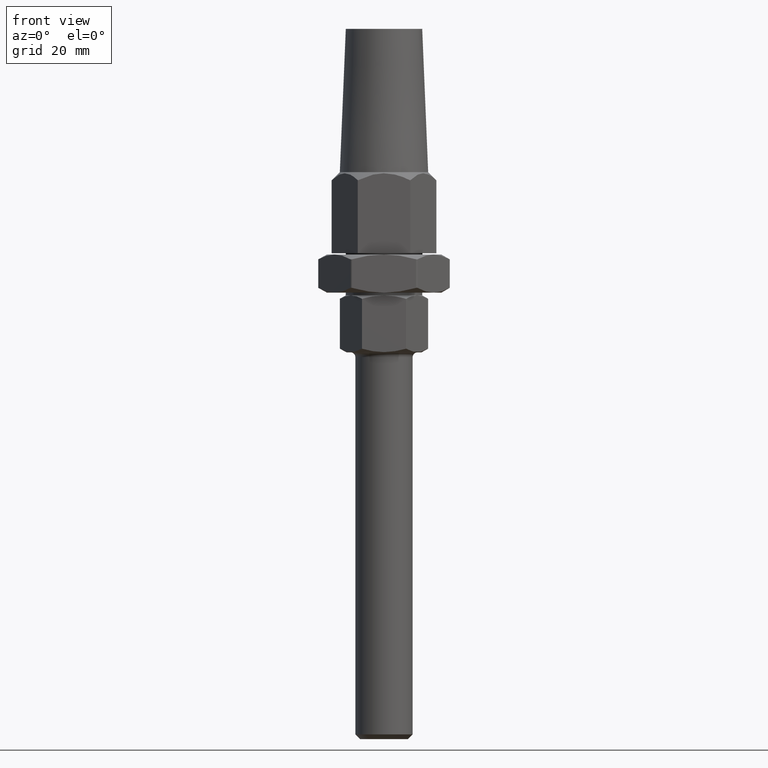
[diagram: clean part render]
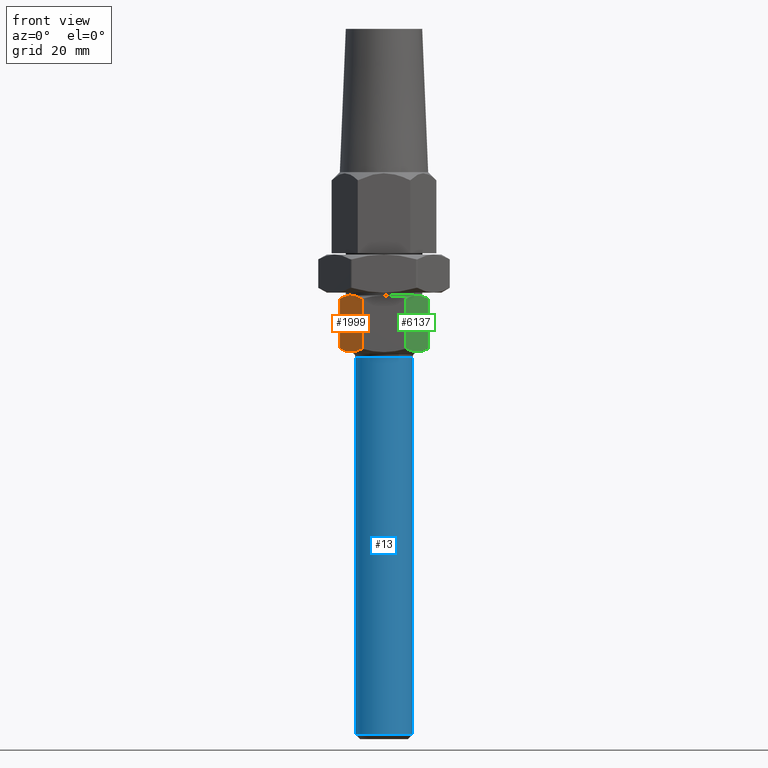
[diagram: same view with three faces highlighted in distinct colors, each labeled with its STEP entity id]
A machine part, front view with three faces highlighted in distinct colors.
Their STEP definitions:

[orange] entity #1999 — the highlighted planar face has unit normal (0.866, 0.5, 0).
#20 = VERTEX_POINT ( 'NONE', #8098 ) ;
#619 = CARTESIAN_POINT ( 'NONE',  ( -9.237604307034009900, 1.788119146427176900E-015, -5.227733793264724800 ) ) ;
#776 = CARTESIAN_POINT ( 'NONE',  ( -6.736274832021603500, -4.332429737191075600, -5.942512272802138000 ) ) ;
#809 = CARTESIAN_POINT ( 'NONE',  ( -6.928203230275510500, -3.999999999999999100, 5.942264973081040400 ) ) ;
#914 = CARTESIAN_POINT ( 'NONE',  ( -8.480771745766396900, -1.310872448937992200, 5.624914128192394000 ) ) ;
#1556 = DIRECTION ( 'NONE',  ( -0.0000000000000000000, -0.0000000000000000000, -1.000000000000000000 ) ) ;
#1973 = CARTESIAN_POINT ( 'NONE',  ( -6.928203230275510500, -3.999999999999999100, 5.942264973081040400 ) ) ;
#1999 = ADVANCED_FACE ( 'NONE', ( #8602 ), #13765, .F. ) ;
#2320 = B_SPLINE_CURVE_WITH_KNOTS ( 'NONE', 3,
 ( #1973, #17837, #5136, #13644, #2356, #914, #5008, #11000 ),
 .UNSPECIFIED., .F., .F.,
 ( 4, 2, 2, 4 ),
 ( 0.004673709593152159200, 0.005837709341827647700, 0.007001709090503136300, 0.009329708587854109900 ),
 .UNSPECIFIED. ) ;
#2355 = DIRECTION ( 'NONE',  ( -0.4999999999999998300, 0.8660254037844387100, 0.0000000000000000000 ) ) ;
#2356 = CARTESIAN_POINT ( 'NONE',  ( -7.903938623646862300, -2.309976723937604800, 5.811611927877235600 ) ) ;
#3192 = LINE ( 'NONE', #8799, #13558 ) ;
#3215 = VERTEX_POINT ( 'NONE', #619 ) ;
#3460 = ORIENTED_EDGE ( 'NONE', *, *, #14137, .F. ) ;
#3530 = CARTESIAN_POINT ( 'NONE',  ( -6.148799107120400000, -5.349967540933316300, -5.860684171246570700 ) ) ;
#3738 = CARTESIAN_POINT ( 'NONE',  ( -4.618802153517005000, -8.000000000000000000, 6.000000000000000000 ) ) ;
#4180 = VECTOR ( 'NONE', #1556, 1000.000000000000000 ) ;
#4546 = DIRECTION ( 'NONE',  ( -0.0000000000000000000, -0.0000000000000000000, -1.000000000000000000 ) ) ;
#4850 = AXIS2_PLACEMENT_3D ( 'NONE', #16667, #15432, #2355 ) ;
#4995 = CARTESIAN_POINT ( 'NONE',  ( -5.377060699637941500, -6.686657672845228700, -5.625588071664168400 ) ) ;
#5008 = CARTESIAN_POINT ( 'NONE',  ( -8.860760056385737800, -0.6527133886630256400, 5.445304922819297600 ) ) ;
#5136 = CARTESIAN_POINT ( 'NONE',  ( -7.321065037175421800, -3.319543390096029200, 5.925376115653274500 ) ) ;
#6547 = CARTESIAN_POINT ( 'NONE',  ( -7.325298332810816300, -3.312211106972067700, -5.941761941789737400 ) ) ;
#7107 = CARTESIAN_POINT ( 'NONE',  ( -4.618802153517005000, -8.000000000000000000, 5.227733793264723900 ) ) ;
#7230 = CARTESIAN_POINT ( 'NONE',  ( -4.996589667937373100, -7.345652830558758100, 5.445849516412256000 ) ) ;
#7483 = CARTESIAN_POINT ( 'NONE',  ( -4.618802153517005000, -8.000000000000000000, 5.227733793264723900 ) ) ;
#8098 = CARTESIAN_POINT ( 'NONE',  ( -9.237604307034009900, 1.788119146427176900E-015, 5.227733793264724800 ) ) ;
#8100 = CARTESIAN_POINT ( 'NONE',  ( -4.996353494169622600, -7.346061895523919600, -5.445713161423647400 ) ) ;
#8152 = CARTESIAN_POINT ( 'NONE',  ( -4.618802153517005000, -8.000000000000000000, -5.227733793264723900 ) ) ;
#8602 = FACE_OUTER_BOUND ( 'NONE', #13513, .T. ) ;
#8716 = CARTESIAN_POINT ( 'NONE',  ( -6.146186931204407100, -5.354491962338118900, 5.874166253475616300 ) ) ;
#8799 = CARTESIAN_POINT ( 'NONE',  ( -9.237604307034009900, 1.726546586878315100E-015, 6.000000000000000000 ) ) ;
#9081 = CARTESIAN_POINT ( 'NONE',  ( -4.618802153517005000, -8.000000000000000000, -5.227733793264723900 ) ) ;
#9145 = LINE ( 'NONE', #3738, #4180 ) ;
#9413 = ORIENTED_EDGE ( 'NONE', *, *, #11034, .T. ) ;
#9992 = VERTEX_POINT ( 'NONE', #7107 ) ;
#10157 = CARTESIAN_POINT ( 'NONE',  ( -6.928203230275510500, -3.999999999999999100, 5.942264973081040400 ) ) ;
#10462 = EDGE_CURVE ( 'NONE', #20, #3215, #3192, .T. ) ;
#11000 = CARTESIAN_POINT ( 'NONE',  ( -9.237604307034009900, 1.788119146427176900E-015, 5.227733793264724800 ) ) ;
#11034 = EDGE_CURVE ( 'NONE', #9992, #15091, #16531, .T. ) ;
#12201 = EDGE_CURVE ( 'NONE', #3215, #13986, #14251, .T. ) ;
#12450 = CARTESIAN_POINT ( 'NONE',  ( -8.860523002319924400, -0.6531239783491548100, -5.445441786048229800 ) ) ;
#13103 = CARTESIAN_POINT ( 'NONE',  ( -6.534749472788146100, -4.681481898396992100, 5.942264973081047500 ) ) ;
#13513 = EDGE_LOOP ( 'NONE', ( #13972, #14346, #3460, #9413, #15108 ) ) ;
#13558 = VECTOR ( 'NONE', #4546, 1000.000000000000000 ) ;
#13636 = CARTESIAN_POINT ( 'NONE',  ( -9.237604307034009900, 1.788119146427176900E-015, -5.227733793264724800 ) ) ;
#13644 = CARTESIAN_POINT ( 'NONE',  ( -7.710515798486360600, -2.644994884459102900, 5.860018177441330200 ) ) ;
#13765 = PLANE ( 'NONE',  #4850 ) ;
#13890 = CARTESIAN_POINT ( 'NONE',  ( -5.955001931524184200, -5.685634095429307400, -5.812325010785320600 ) ) ;
#13972 = ORIENTED_EDGE ( 'NONE', *, *, #10462, .T. ) ;
#13986 = VERTEX_POINT ( 'NONE', #9081 ) ;
#14137 = EDGE_CURVE ( 'NONE', #9992, #13986, #9145, .T. ) ;
#14251 = B_SPLINE_CURVE_WITH_KNOTS ( 'NONE', 3,
 ( #13636, #12450, #18135, #15236, #6547, #776, #17941, #3530, #13890, #4995, #8100, #8152 ),
 .UNSPECIFIED., .F., .F.,
 ( 4, 2, 2, 2, 2, 4 ),
 ( 2.380731629570365000E-007, 0.002332605701835745500, 0.004664973330508535700, 0.005831157144844930300, 0.006997340959181324100, 0.009329708587854109900 ),
 .UNSPECIFIED. ) ;
#14346 = ORIENTED_EDGE ( 'NONE', *, *, #12201, .T. ) ;
#15091 = VERTEX_POINT ( 'NONE', #809 ) ;
#15108 = ORIENTED_EDGE ( 'NONE', *, *, #16770, .T. ) ;
#15236 = CARTESIAN_POINT ( 'NONE',  ( -7.713109539776117400, -2.640502392763556900, -5.873442693890264200 ) ) ;
#15432 = DIRECTION ( 'NONE',  ( 0.8660254037844387100, 0.4999999999999998300, -0.0000000000000000000 ) ) ;
#16531 = B_SPLINE_CURVE_WITH_KNOTS ( 'NONE', 3,
 ( #7483, #7230, #17309, #8716, #13103, #10157 ),
 .UNSPECIFIED., .F., .F.,
 ( 4, 2, 4 ),
 ( 2.380731629586569300E-007, 0.002336973833157559000, 0.004673709593152159200 ),
 .UNSPECIFIED. ) ;
#16667 = CARTESIAN_POINT ( 'NONE',  ( -9.237604307034009900, 1.726546586878315100E-015, 6.000000000000000000 ) ) ;
#16770 = EDGE_CURVE ( 'NONE', #15091, #20, #2320, .T. ) ;
#17309 = CARTESIAN_POINT ( 'NONE',  ( -5.377136764700156700, -6.686525924292787700, 5.625544522121209900 ) ) ;
#17837 = CARTESIAN_POINT ( 'NONE',  ( -7.124194613927620900, -3.660532965668811900, 5.942264973081048400 ) ) ;
#17941 = CARTESIAN_POINT ( 'NONE',  ( -6.539009922877614400, -4.674102582378920600, -5.925810846225312300 ) ) ;
#18135 = CARTESIAN_POINT ( 'NONE',  ( -8.480692428760571400, -1.311009830021984600, -5.624872652672732600 ) ) ;

[blue] entity #13 — the highlighted cylindrical surface (edge-blend (fillet) strip) has radius 6 mm, axis along (0, 0, 1).
#13 = ADVANCED_FACE ( 'NONE', ( #11286 ), #10375, .T. ) ;
#475 = ORIENTED_EDGE ( 'NONE', *, *, #18209, .T. ) ;
#1008 = DIRECTION ( 'NONE',  ( -0.0000000000000000000, 0.0000000000000000000, -1.000000000000000000 ) ) ;
#1647 = CARTESIAN_POINT ( 'NONE',  ( 6.000000000000000900, 0.0000000000000000000, -87.00000000000001400 ) ) ;
#1712 = AXIS2_PLACEMENT_3D ( 'NONE', #3527, #12254, #13887 ) ;
#1946 = ORIENTED_EDGE ( 'NONE', *, *, #9680, .T. ) ;
#2984 = VECTOR ( 'NONE', #14770, 1000.000000000000000 ) ;
#3527 = CARTESIAN_POINT ( 'NONE',  ( 0.0000000000000000000, 0.0000000000000000000, -87.00000000000001400 ) ) ;
#3632 = DIRECTION ( 'NONE',  ( 1.000000000000000000, 0.0000000000000000000, 0.0000000000000000000 ) ) ;
#4344 = VERTEX_POINT ( 'NONE', #16784 ) ;
#4651 = AXIS2_PLACEMENT_3D ( 'NONE', #5162, #1008, #3632 ) ;
#4970 = CARTESIAN_POINT ( 'NONE',  ( -6.000000000000000900, 7.347880794884120700E-016, -87.00000000000001400 ) ) ;
#4981 = CIRCLE ( 'NONE', #17925, 6.000000000000000900 ) ;
#5162 = CARTESIAN_POINT ( 'NONE',  ( 0.0000000000000000000, 0.0000000000000000000, -7.000000000000006200 ) ) ;
#5495 = CARTESIAN_POINT ( 'NONE',  ( 0.0000000000000000000, 0.0000000000000000000, -86.00000000000000000 ) ) ;
#7070 = DIRECTION ( 'NONE',  ( 0.0000000000000000000, 0.0000000000000000000, 1.000000000000000000 ) ) ;
#9556 = EDGE_LOOP ( 'NONE', ( #18270, #475, #1946, #16837 ) ) ;
#9680 = EDGE_CURVE ( 'NONE', #15227, #14409, #10227, .T. ) ;
#10227 = LINE ( 'NONE', #1647, #2984 ) ;
#10375 = CYLINDRICAL_SURFACE ( 'NONE', #1712, 6.000000000000000900 ) ;
#11286 = FACE_OUTER_BOUND ( 'NONE', #9556, .T. ) ;
#11635 = LINE ( 'NONE', #4970, #16804 ) ;
#12114 = DIRECTION ( 'NONE',  ( -0.0000000000000000000, -0.0000000000000000000, 1.000000000000000000 ) ) ;
#12254 = DIRECTION ( 'NONE',  ( -0.0000000000000000000, -0.0000000000000000000, 1.000000000000000000 ) ) ;
#12595 = EDGE_CURVE ( 'NONE', #18649, #4344, #11635, .T. ) ;
#12700 = EDGE_CURVE ( 'NONE', #14409, #4344, #15927, .T. ) ;
#12868 = CARTESIAN_POINT ( 'NONE',  ( -6.000000000000000900, 7.347880794884120700E-016, -86.00000000000000000 ) ) ;
#12950 = DIRECTION ( 'NONE',  ( -1.000000000000000000, 0.0000000000000000000, 0.0000000000000000000 ) ) ;
#13887 = DIRECTION ( 'NONE',  ( 1.000000000000000000, 0.0000000000000000000, 0.0000000000000000000 ) ) ;
#14409 = VERTEX_POINT ( 'NONE', #16122 ) ;
#14770 = DIRECTION ( 'NONE',  ( -0.0000000000000000000, -0.0000000000000000000, 1.000000000000000000 ) ) ;
#15227 = VERTEX_POINT ( 'NONE', #15328 ) ;
#15328 = CARTESIAN_POINT ( 'NONE',  ( 6.000000000000000900, 0.0000000000000000000, -86.00000000000000000 ) ) ;
#15927 = CIRCLE ( 'NONE', #4651, 6.000000000000000900 ) ;
#16122 = CARTESIAN_POINT ( 'NONE',  ( 6.000000000000000900, 0.0000000000000000000, -7.000000000000006200 ) ) ;
#16784 = CARTESIAN_POINT ( 'NONE',  ( -6.000000000000000900, 7.347880794884120700E-016, -7.000000000000006200 ) ) ;
#16804 = VECTOR ( 'NONE', #12114, 1000.000000000000000 ) ;
#16837 = ORIENTED_EDGE ( 'NONE', *, *, #12700, .T. ) ;
#17925 = AXIS2_PLACEMENT_3D ( 'NONE', #5495, #7070, #12950 ) ;
#18209 = EDGE_CURVE ( 'NONE', #18649, #15227, #4981, .T. ) ;
#18270 = ORIENTED_EDGE ( 'NONE', *, *, #12595, .F. ) ;
#18649 = VERTEX_POINT ( 'NONE', #12868 ) ;

[green] entity #6137 — the highlighted planar face has unit normal (-0.866, 0.5, 0).
#590 = CARTESIAN_POINT ( 'NONE',  ( 6.928203230275511400, -3.999999999999998200, 5.942264973081040400 ) ) ;
#1633 = CARTESIAN_POINT ( 'NONE',  ( 6.928203230275511400, -3.999999999999998200, 5.942264973081040400 ) ) ;
#1644 = VERTEX_POINT ( 'NONE', #5156 ) ;
#1655 = EDGE_CURVE ( 'NONE', #2857, #17685, #17431, .T. ) ;
#2239 = CARTESIAN_POINT ( 'NONE',  ( 4.618802153517008500, -8.000000000000000000, 5.227733793264723000 ) ) ;
#2441 = CARTESIAN_POINT ( 'NONE',  ( 6.535341423375595800, -4.680456609903965100, 5.925376115653273600 ) ) ;
#2569 = CARTESIAN_POINT ( 'NONE',  ( 8.860052966381392300, -0.6539381044760799200, -5.445713161423646500 ) ) ;
#2857 = VERTEX_POINT ( 'NONE', #13827 ) ;
#3046 = PLANE ( 'NONE',  #9032 ) ;
#3112 = CARTESIAN_POINT ( 'NONE',  ( 9.237604307034013500, 2.634880545139680300E-015, -5.227733793264723000 ) ) ;
#3227 = DIRECTION ( 'NONE',  ( -0.0000000000000000000, -0.0000000000000000000, -1.000000000000000000 ) ) ;
#3429 = VERTEX_POINT ( 'NONE', #17127 ) ;
#3959 = FACE_OUTER_BOUND ( 'NONE', #4769, .T. ) ;
#4218 = CARTESIAN_POINT ( 'NONE',  ( 5.375714031790447900, -6.688990169978012500, -5.624872652672731700 ) ) ;
#4724 = CARTESIAN_POINT ( 'NONE',  ( 8.859816792613646200, -0.6543471694412362800, 5.445849516412255100 ) ) ;
#4769 = EDGE_LOOP ( 'NONE', ( #10967, #8775, #13399, #8190, #10259 ) ) ;
#5092 = CARTESIAN_POINT ( 'NONE',  ( 6.928203230275511400, -3.999999999999998200, 5.942264973081040400 ) ) ;
#5156 = CARTESIAN_POINT ( 'NONE',  ( 9.237604307034013500, 2.634880545139680300E-015, 5.227733793264723000 ) ) ;
#5278 = CARTESIAN_POINT ( 'NONE',  ( 4.995646404165280600, -7.347286611336970800, 5.445304922819296700 ) ) ;
#5469 = CARTESIAN_POINT ( 'NONE',  ( 6.531108127740200300, -4.687788893027930100, -5.941761941789737400 ) ) ;
#5754 = LINE ( 'NONE', #8630, #8022 ) ;
#6137 = ADVANCED_FACE ( 'NONE', ( #3959 ), #3046, .F. ) ;
#6484 = CARTESIAN_POINT ( 'NONE',  ( 7.321656987762871400, -3.318518101603002500, 5.942264973081045700 ) ) ;
#7524 = DIRECTION ( 'NONE',  ( -0.4999999999999997800, -0.8660254037844388200, 0.0000000000000000000 ) ) ;
#7903 = CARTESIAN_POINT ( 'NONE',  ( 8.479269695850861800, -1.313474075707208100, 5.625544522121209000 ) ) ;
#8022 = VECTOR ( 'NONE', #10072, 1000.000000000000000 ) ;
#8190 = ORIENTED_EDGE ( 'NONE', *, *, #17997, .T. ) ;
#8540 = CARTESIAN_POINT ( 'NONE',  ( 7.120131628529414900, -3.667570262808922600, -5.942512272802138000 ) ) ;
#8599 = CARTESIAN_POINT ( 'NONE',  ( 7.317396537673400500, -3.325897417621079800, -5.925810846225312300 ) ) ;
#8630 = CARTESIAN_POINT ( 'NONE',  ( 9.237604307034013500, 2.638671773905561600E-015, 6.000000000000000000 ) ) ;
#8758 = CARTESIAN_POINT ( 'NONE',  ( 4.618802153517008500, -8.000000000000000000, 6.000000000000000000 ) ) ;
#8775 = ORIENTED_EDGE ( 'NONE', *, *, #1655, .T. ) ;
#9032 = AXIS2_PLACEMENT_3D ( 'NONE', #8758, #16176, #7524 ) ;
#9603 = VECTOR ( 'NONE', #3227, 1000.000000000000000 ) ;
#9799 = EDGE_CURVE ( 'NONE', #13834, #3429, #18112, .T. ) ;
#9855 = CARTESIAN_POINT ( 'NONE',  ( 7.707607353430619300, -2.650032459066684200, -5.860684171246567200 ) ) ;
#9973 = CARTESIAN_POINT ( 'NONE',  ( 7.901404529026829800, -2.314365904570692600, -5.812325010785321500 ) ) ;
#10072 = DIRECTION ( 'NONE',  ( -0.0000000000000000000, -0.0000000000000000000, -1.000000000000000000 ) ) ;
#10259 = ORIENTED_EDGE ( 'NONE', *, *, #9799, .T. ) ;
#10967 = ORIENTED_EDGE ( 'NONE', *, *, #14413, .T. ) ;
#11409 = LINE ( 'NONE', #11888, #9603 ) ;
#11888 = CARTESIAN_POINT ( 'NONE',  ( 4.618802153517008500, -8.000000000000000000, 6.000000000000000000 ) ) ;
#12468 = EDGE_CURVE ( 'NONE', #1644, #17685, #5754, .T. ) ;
#13089 = B_SPLINE_CURVE_WITH_KNOTS ( 'NONE', 3,
 ( #13560, #4724, #7903, #15233, #6484, #590 ),
 .UNSPECIFIED., .F., .F.,
 ( 4, 2, 4 ),
 ( 2.380731629562019400E-007, 0.002336973833157554200, 0.004673709593152153100 ),
 .UNSPECIFIED. ) ;
#13399 = ORIENTED_EDGE ( 'NONE', *, *, #12468, .F. ) ;
#13560 = CARTESIAN_POINT ( 'NONE',  ( 9.237604307034013500, 2.634880545139680300E-015, 5.227733793264723000 ) ) ;
#13827 = CARTESIAN_POINT ( 'NONE',  ( 4.618802153517008500, -8.000000000000000000, -5.227733793264723000 ) ) ;
#13834 = VERTEX_POINT ( 'NONE', #1633 ) ;
#13849 = CARTESIAN_POINT ( 'NONE',  ( 5.952467836904155300, -5.690023276062391700, 5.811611927877234700 ) ) ;
#13918 = CARTESIAN_POINT ( 'NONE',  ( 6.732211846623396700, -4.339467034331182300, 5.942264973081044800 ) ) ;
#14413 = EDGE_CURVE ( 'NONE', #3429, #2857, #11409, .T. ) ;
#15233 = CARTESIAN_POINT ( 'NONE',  ( 7.710219529346607800, -2.645508037661873100, 5.874166253475610100 ) ) ;
#15578 = CARTESIAN_POINT ( 'NONE',  ( 9.237604307034013500, 2.634880545139680300E-015, -5.227733793264723000 ) ) ;
#15830 = CARTESIAN_POINT ( 'NONE',  ( 8.479345760913073300, -1.313342327154771500, -5.625588071664166600 ) ) ;
#16176 = DIRECTION ( 'NONE',  ( -0.8660254037844388200, 0.4999999999999997800, 0.0000000000000000000 ) ) ;
#16813 = CARTESIAN_POINT ( 'NONE',  ( 6.145890662064657800, -5.355005115540890000, 5.860018177441329400 ) ) ;
#17127 = CARTESIAN_POINT ( 'NONE',  ( 4.618802153517008500, -8.000000000000000000, 5.227733793264723000 ) ) ;
#17259 = CARTESIAN_POINT ( 'NONE',  ( 6.143296920774901100, -5.359497607236440000, -5.873442693890263300 ) ) ;
#17431 = B_SPLINE_CURVE_WITH_KNOTS ( 'NONE', 3,
 ( #18555, #18422, #4218, #17259, #5469, #8540, #8599, #9855, #9973, #15830, #2569, #15578 ),
 .UNSPECIFIED., .F., .F.,
 ( 4, 2, 2, 2, 2, 4 ),
 ( 2.380731629582276200E-007, 0.002332605701835746000, 0.004664973330508533100, 0.005831157144844926900, 0.006997340959181319800, 0.009329708587854109900 ),
 .UNSPECIFIED. ) ;
#17685 = VERTEX_POINT ( 'NONE', #3112 ) ;
#17997 = EDGE_CURVE ( 'NONE', #1644, #13834, #13089, .T. ) ;
#18112 = B_SPLINE_CURVE_WITH_KNOTS ( 'NONE', 3,
 ( #5092, #13918, #2441, #16813, #13849, #18289, #5278, #2239 ),
 .UNSPECIFIED., .F., .F.,
 ( 4, 2, 2, 4 ),
 ( 0.004673709593152153100, 0.005837709341827641700, 0.007001709090503131100, 0.009329708587854108200 ),
 .UNSPECIFIED. ) ;
#18289 = CARTESIAN_POINT ( 'NONE',  ( 5.375634714784623300, -6.689127551062002300, 5.624914128192392200 ) ) ;
#18422 = CARTESIAN_POINT ( 'NONE',  ( 4.995883458231092300, -7.346876021650845500, -5.445441786048226300 ) ) ;
#18555 = CARTESIAN_POINT ( 'NONE',  ( 4.618802153517008500, -8.000000000000000000, -5.227733793264723000 ) ) ;